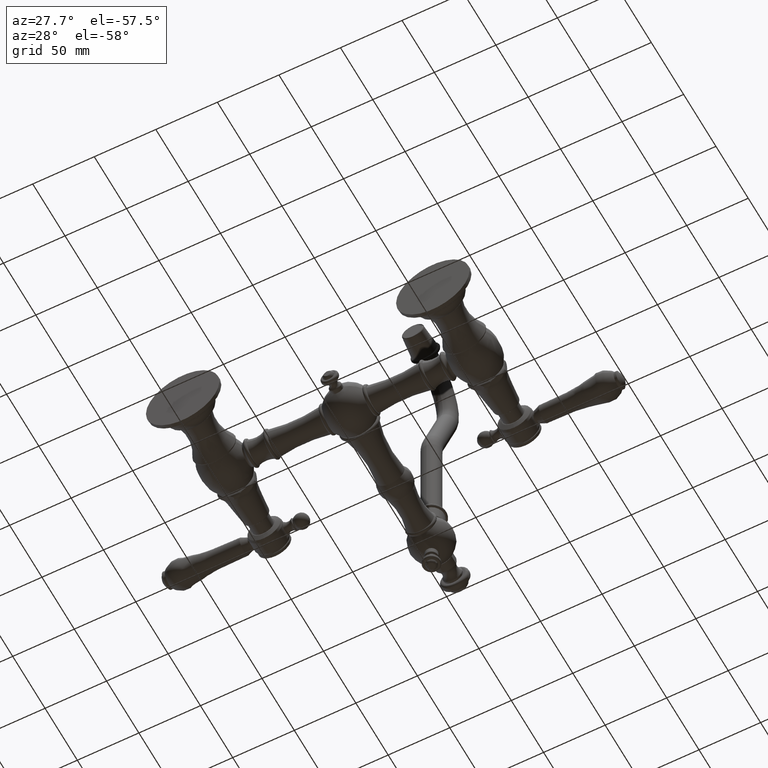
[diagram: clean part render]
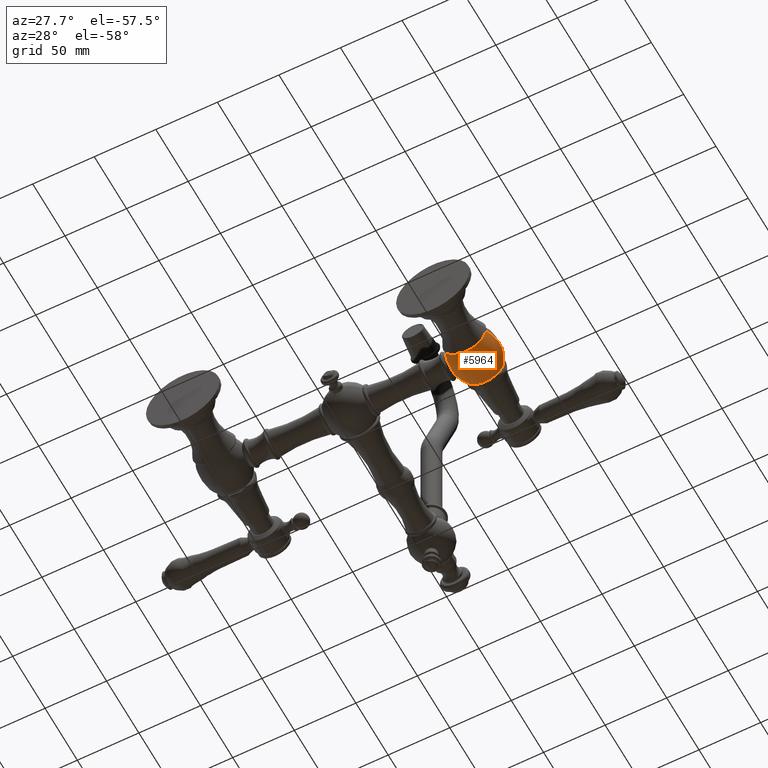
[diagram: same view with one face highlighted and labeled with its STEP entity id]
A machine part, auxiliary view. The second image highlights one B-rep face of the part: STEP entity #5964.
In plain terms, the highlighted face is a freeform B-spline surface patch.
Its self-contained STEP definition (entity closure, byte-faithful):
#1946=CARTESIAN_POINT('',(3.266051690519E0,-3.683432356150E-1,0.E0));
#1947=CARTESIAN_POINT('',(3.266051690519E0,-3.683432356150E-1,
-1.003875100498E-2));
#1948=CARTESIAN_POINT('',(3.266151000141E0,-3.674994166428E-1,
-3.010264955080E-2));
#1949=CARTESIAN_POINT('',(3.266593669870E0,-3.637140995043E-1,
-5.997138316049E-2));
#1950=CARTESIAN_POINT('',(3.267314278548E0,-3.574737328134E-1,
-8.930698982440E-2));
#1951=CARTESIAN_POINT('',(3.268294446279E0,-3.488204784656E-1,
-1.180077216624E-1));
#1952=CARTESIAN_POINT('',(3.269498678112E0,-3.379107848129E-1,
-1.457090552075E-1));
#1953=CARTESIAN_POINT('',(3.270911408647E0,-3.246820256843E-1,
-1.726059285720E-1));
#1954=CARTESIAN_POINT('',(3.272491151424E0,-3.092688266514E-1,
-1.983616315912E-1));
#1955=CARTESIAN_POINT('',(3.274192971744E0,-2.918145522016E-1,
-2.227530039806E-1));
#1956=CARTESIAN_POINT('',(3.275961252669E0,-2.725751963396E-1,
-2.455033841555E-1));
#1957=CARTESIAN_POINT('',(3.277777445582E0,-2.513781031906E-1,
-2.668168598212E-1));
#1958=CARTESIAN_POINT('',(3.279588713943E0,-2.283907060278E-1,
-2.864500156138E-1));
#1959=CARTESIAN_POINT('',(3.281356139520E0,-2.035839227291E-1,
-3.043454419602E-1));
#1960=CARTESIAN_POINT('',(3.283015241222E0,-1.772802991825E-1,
-3.201942178490E-1));
#1961=CARTESIAN_POINT('',(3.284521622006E0,-1.495656359188E-1,
-3.339009510761E-1));
#1962=CARTESIAN_POINT('',(3.285822677574E0,-1.207084825353E-1,
-3.452752932836E-1));
#1963=CARTESIAN_POINT('',(3.286870278923E0,-9.114263786462E-2,
-3.541515351100E-1));
#1964=CARTESIAN_POINT('',(3.287638574433E0,-6.104287711427E-2,
-3.605131582690E-1));
#1965=CARTESIAN_POINT('',(3.288108279830E0,-3.050332494433E-2,
-3.643436741148E-1));
#1966=CARTESIAN_POINT('',(3.288264595524E0,2.008584316166E-4,
-3.656088521147E-1));
#1967=CARTESIAN_POINT('',(3.288104109904E0,3.090369800952E-2,
-3.643098626858E-1));
#1968=CARTESIAN_POINT('',(3.287630702408E0,6.142658173330E-2,
-3.604485493960E-1));
#1969=CARTESIAN_POINT('',(3.286857391854E0,9.157720581876E-2,
-3.540440845771E-1));
#1970=CARTESIAN_POINT('',(3.285800677633E0,1.212553750981E-1,
-3.450863558104E-1));
#1971=CARTESIAN_POINT('',(3.284497433499E0,1.500484600886E-1,
-3.336854519995E-1));
#1972=CARTESIAN_POINT('',(3.282985590528E0,1.777875134170E-1,
-3.199188894679E-1));
#1973=CARTESIAN_POINT('',(3.281320427228E0,2.041139520878E-1,
-3.039947936399E-1));
#1974=CARTESIAN_POINT('',(3.279553858459E0,2.288527747923E-1,
-2.860848465357E-1));
#1975=CARTESIAN_POINT('',(3.277742808755E0,2.517982927363E-1,
-2.664267686088E-1));
#1976=CARTESIAN_POINT('',(3.275926581246E0,2.729649968910E-1,
-2.450785999124E-1));
#1977=CARTESIAN_POINT('',(3.274159153988E0,2.921701191613E-1,
-2.222932590127E-1));
#1978=CARTESIAN_POINT('',(3.272468291641E0,3.094945630532E-1,
-1.980039037027E-1));
#1979=CARTESIAN_POINT('',(3.270905483021E0,3.247369129090E-1,
-1.724900689605E-1));
#1980=CARTESIAN_POINT('',(3.269499826555E0,3.379001321197E-1,
-1.457309376665E-1));
#1981=CARTESIAN_POINT('',(3.268294087317E0,3.488237972191E-1,
-1.180007660322E-1));
#1982=CARTESIAN_POINT('',(3.267314273715E0,3.574737278185E-1,
-8.930538659006E-2));
#1983=CARTESIAN_POINT('',(3.266593680209E0,3.637140227758E-1,
-5.997219231060E-2));
#1984=CARTESIAN_POINT('',(3.266151005534E0,3.674993673074E-1,
-3.010314879209E-2));
#1985=CARTESIAN_POINT('',(3.266051690519E0,3.683432356150E-1,
-1.003902117946E-2));
#1986=CARTESIAN_POINT('',(3.266051690519E0,3.683432356150E-1,0.E0));
#2007=CARTESIAN_POINT('',(4.E0,-5.663155622858E-1,0.E0));
#2008=DIRECTION('',(0.E0,-1.E0,0.E0));
#2009=DIRECTION('',(-1.E0,0.E0,0.E0));
#2010=AXIS2_PLACEMENT_3D('',#2007,#2008,#2009);
#2015=CARTESIAN_POINT('',(4.260075555556E0,0.E0,0.E0));
#2016=DIRECTION('',(0.E0,0.E0,-1.E0));
#2017=DIRECTION('',(-9.376915256914E-1,3.474688513329E-1,0.E0));
#2018=AXIS2_PLACEMENT_3D('',#2015,#2016,#2017);
#2023=CARTESIAN_POINT('',(3.739924444444E0,0.E0,0.E0));
#2024=DIRECTION('',(0.E0,0.E0,1.E0));
#2025=DIRECTION('',(8.453442948448E-1,-5.342218857117E-1,0.E0));
#2026=AXIS2_PLACEMENT_3D('',#2023,#2024,#2025);
#2039=CARTESIAN_POINT('',(4.260075555556E0,0.E0,0.E0));
#2040=DIRECTION('',(0.E0,0.E0,-1.E0));
#2041=DIRECTION('',(-8.453442948448E-1,-5.342218857117E-1,0.E0));
#2042=AXIS2_PLACEMENT_3D('',#2039,#2040,#2041);
#2047=CARTESIAN_POINT('',(3.266051690519E0,3.683432356150E-1,0.E0));
#2087=CARTESIAN_POINT('',(3.266051690519E0,-3.683432356150E-1,0.E0));
#2866=CARTESIAN_POINT('',(4.E0,6.105996333622E-1,0.E0));
#2867=DIRECTION('',(0.E0,1.E0,0.E0));
#2868=DIRECTION('',(1.E0,0.E0,7.367290718243E-12));
#2869=AXIS2_PLACEMENT_3D('',#2866,#2867,#2868);
#3736=CARTESIAN_POINT('',(4.606485620141E0,6.105996333622E-1,
4.468155890011E-12));
#3737=CARTESIAN_POINT('',(3.393514379859E0,6.105996333622E-1,
-5.853682797904E-12));
#3738=VERTEX_POINT('',#3736);
#3739=VERTEX_POINT('',#3737);
#3740=CARTESIAN_POINT('',(4.636053267438E0,-5.663155622858E-1,0.E0));
#3741=VERTEX_POINT('',#3740);
#3753=CARTESIAN_POINT('',(3.363946732562E0,-5.663155622858E-1,0.E0));
#3755=VERTEX_POINT('',#3753);
#3760=VERTEX_POINT('',#2047);
#3761=VERTEX_POINT('',#2087);
#5922=CARTESIAN_POINT('',(3.409299733861E0,6.308344078809E-1,
3.716371069076E-2));
#5923=CARTESIAN_POINT('',(3.134841796563E0,2.594452981819E-1,
5.443114049101E-2));
#5924=CARTESIAN_POINT('',(3.123258509266E0,-2.025292580949E-1,
5.515989915702E-2));
#5925=CARTESIAN_POINT('',(3.378757957136E0,-5.872588145844E-1,
3.908523641077E-2));
#5926=CARTESIAN_POINT('',(3.386429238432E0,6.308344078809E-1,
-3.263524045143E-1));
#5927=CARTESIAN_POINT('',(3.101344949055E0,2.594452981819E-1,
-4.779860043446E-1));
#5928=CARTESIAN_POINT('',(3.089313184697E0,-2.025292580949E-1,
-4.843855844334E-1));
#5929=CARTESIAN_POINT('',(3.354704957474E0,-5.872588145844E-1,
-3.432262453501E-1));
#5930=CARTESIAN_POINT('',(3.635765150521E0,6.308344078809E-1,
-5.918681827981E-1));
#5931=CARTESIAN_POINT('',(3.466530174323E0,2.594452981819E-1,
-8.668687709392E-1));
#5932=CARTESIAN_POINT('',(3.459387741609E0,-2.025292580949E-1,
-8.784749604001E-1));
#5933=CARTESIAN_POINT('',(3.616932622273E0,-5.872588145844E-1,
-6.224703459019E-1));
#5934=CARTESIAN_POINT('',(4.E0,6.308344078809E-1,-5.918681827981E-1));
#5935=CARTESIAN_POINT('',(4.E0,2.594452981819E-1,-8.668687709392E-1));
#5936=CARTESIAN_POINT('',(4.E0,-2.025292580949E-1,-8.784749604001E-1));
#5937=CARTESIAN_POINT('',(4.E0,-5.872588145844E-1,-6.224703459019E-1));
#5938=CARTESIAN_POINT('',(4.364234849479E0,6.308344078809E-1,
-5.918681827981E-1));
#5939=CARTESIAN_POINT('',(4.533469825677E0,2.594452981819E-1,
-8.668687709392E-1));
#5940=CARTESIAN_POINT('',(4.540612258391E0,-2.025292580949E-1,
-8.784749604001E-1));
#5941=CARTESIAN_POINT('',(4.383067377727E0,-5.872588145844E-1,
-6.224703459019E-1));
#5942=CARTESIAN_POINT('',(4.613570761568E0,6.308344078809E-1,
-3.263524045143E-1));
#5943=CARTESIAN_POINT('',(4.898655050945E0,2.594452981819E-1,
-4.779860043446E-1));
#5944=CARTESIAN_POINT('',(4.910686815303E0,-2.025292580949E-1,
-4.843855844334E-1));
#5945=CARTESIAN_POINT('',(4.645295042526E0,-5.872588145844E-1,
-3.432262453501E-1));
#5946=CARTESIAN_POINT('',(4.590700266139E0,6.308344078809E-1,
3.716371069076E-2));
#5947=CARTESIAN_POINT('',(4.865158203437E0,2.594452981819E-1,
5.443114049101E-2));
#5948=CARTESIAN_POINT('',(4.876741490734E0,-2.025292580949E-1,
5.515989915702E-2));
#5949=CARTESIAN_POINT('',(4.621242042864E0,-5.872588145844E-1,
3.908523641077E-2));
#5950=(BOUNDED_SURFACE()B_SPLINE_SURFACE(3,3,((#5922,#5923,#5924,#5925),(#5926,
#5927,#5928,#5929),(#5930,#5931,#5932,#5933),(#5934,#5935,#5936,#5937),(#5938,
#5939,#5940,#5941),(#5942,#5943,#5944,#5945),(#5946,#5947,#5948,#5949)),
.UNSPECIFIED.,.F.,.F.,.F.)B_SPLINE_SURFACE_WITH_KNOTS((4,3,4),(4,4),(0.E0,1.E0,
2.E0),(0.E0,1.E0),.UNSPECIFIED.)GEOMETRIC_REPRESENTATION_ITEM()RATIONAL_B_SPLINE_SURFACE(((1.305864396587E0,1.147728844463E0,1.147728844463E0,1.305864396587E0),(
1.031238594475E0,9.063592540666E-1,9.063592540666E-1,1.031238594475E0),(
1.031238594475E0,9.063592540666E-1,9.063592540666E-1,1.031238594475E0),(
1.305864396587E0,1.147728844463E0,1.147728844463E0,1.305864396587E0),(
1.031238594475E0,9.063592540666E-1,9.063592540666E-1,1.031238594475E0),(
1.031238594475E0,9.063592540666E-1,9.063592540666E-1,1.031238594475E0),(
1.305864396587E0,1.147728844463E0,1.147728844463E0,1.305864396587E0)))REPRESENTATION_ITEM('')SURFACE());
#5951=ORIENTED_EDGE('',*,*,#5900,.F.);
#5953=ORIENTED_EDGE('',*,*,#5952,.F.);
#5955=ORIENTED_EDGE('',*,*,#5954,.T.);
#5957=ORIENTED_EDGE('',*,*,#5956,.T.);
#5959=ORIENTED_EDGE('',*,*,#5958,.T.);
#5961=ORIENTED_EDGE('',*,*,#5960,.F.);
#5962=EDGE_LOOP('',(#5951,#5953,#5955,#5957,#5959,#5961));
#5963=FACE_OUTER_BOUND('',#5962,.F.);
#1987=B_SPLINE_CURVE_WITH_KNOTS('',3,(#1946,#1947,#1948,#1949,#1950,#1951,#1952,
#1953,#1954,#1955,#1956,#1957,#1958,#1959,#1960,#1961,#1962,#1963,#1964,#1965,
#1966,#1967,#1968,#1969,#1970,#1971,#1972,#1973,#1974,#1975,#1976,#1977,#1978,
#1979,#1980,#1981,#1982,#1983,#1984,#1985,#1986),.UNSPECIFIED.,.F.,.F.,(4,1,1,1,
1,1,1,1,1,1,1,1,1,1,1,1,1,1,1,1,1,1,1,1,1,1,1,1,1,1,1,1,1,1,1,1,1,1,4),(0.E0,
2.631578947368E-2,5.263157894737E-2,7.894736842105E-2,1.052631578947E-1,
1.315789473684E-1,1.578947368421E-1,1.842105263158E-1,2.105263157895E-1,
2.368421052632E-1,2.631578947368E-1,2.894736842105E-1,3.157894736842E-1,
3.421052631579E-1,3.684210526316E-1,3.947368421053E-1,4.210526315789E-1,
4.473684210526E-1,4.736842105263E-1,5.E-1,5.263157894737E-1,5.526315789474E-1,
5.789473684211E-1,6.052631578947E-1,6.315789473684E-1,6.578947368421E-1,
6.842105263158E-1,7.105263157895E-1,7.368421052632E-1,7.631578947368E-1,
7.894736842105E-1,8.157894736842E-1,8.421052631579E-1,8.684210526316E-1,
8.947368421053E-1,9.210526315789E-1,9.473684210526E-1,9.736842105263E-1,1.E0),
.UNSPECIFIED.);
#2011=CIRCLE('',#2010,6.360532674378E-1);
#2019=CIRCLE('',#2018,1.060075555556E0);
#2027=CIRCLE('',#2026,1.060075555556E0);
#2043=CIRCLE('',#2042,1.060075555556E0);
#2870=CIRCLE('',#2869,6.064856201409E-1);
#5900=EDGE_CURVE('',#3761,#3760,#1987,.T.);
#5952=EDGE_CURVE('',#3755,#3761,#2043,.T.);
#5954=EDGE_CURVE('',#3755,#3741,#2011,.T.);
#5956=EDGE_CURVE('',#3741,#3738,#2027,.T.);
#5958=EDGE_CURVE('',#3738,#3739,#2870,.T.);
#5960=EDGE_CURVE('',#3760,#3739,#2019,.T.);
#5964=ADVANCED_FACE('',(#5963),#5950,.T.);